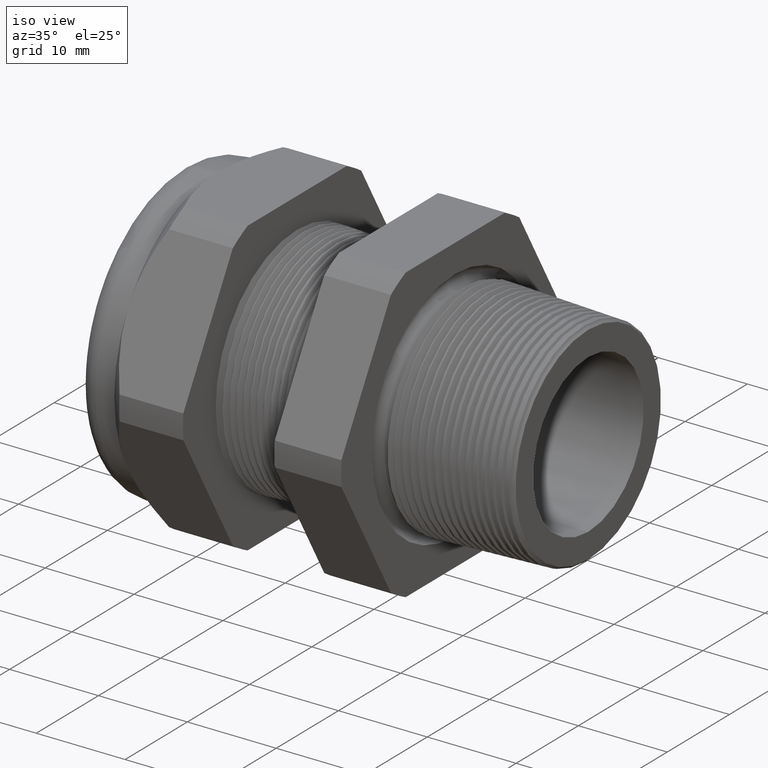
[diagram: clean part render]
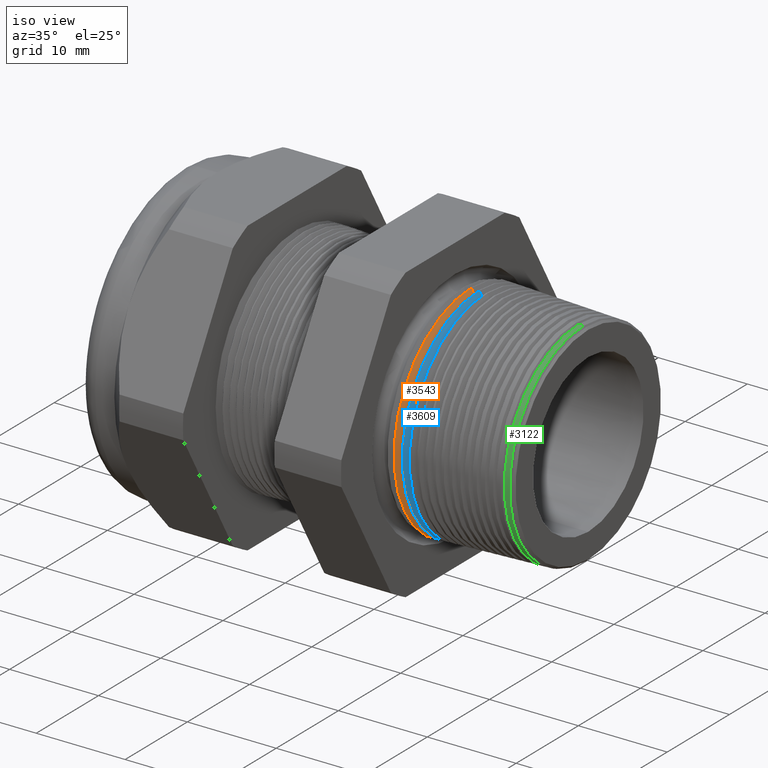
[diagram: same view with three faces highlighted in distinct colors, each labeled with its STEP entity id]
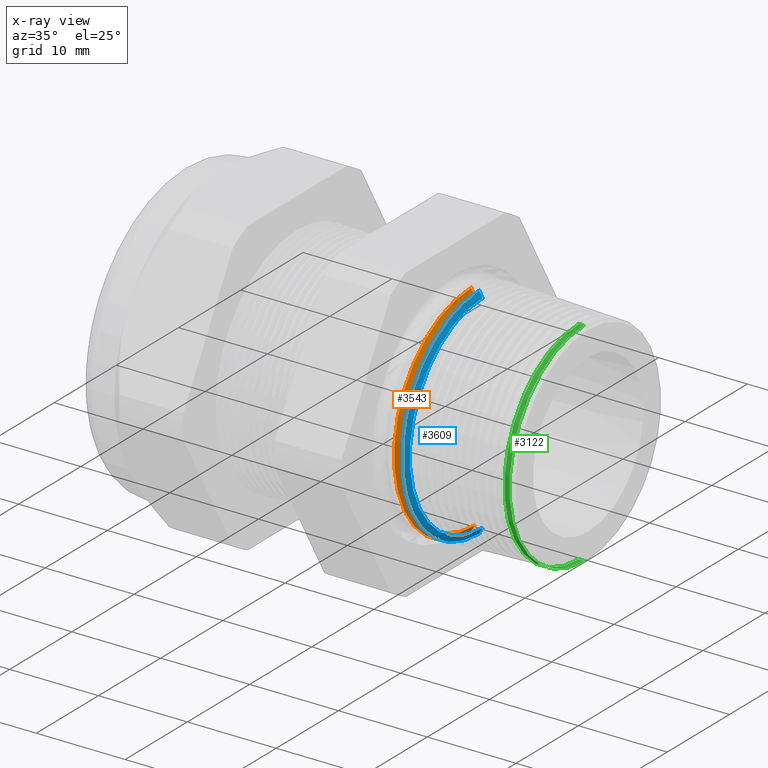
[diagram: x-ray of the same camera — body ghosted, the three highlighted faces saturated]
A machine part, iso view with three faces highlighted in distinct colors.
The next image is the same camera in x-ray (body ghosted, the three faces saturated) — at least one of them is partly hidden behind the body in this view.
Their STEP definitions:

[orange] entity #3543 — the highlighted conical surface has half-angle 62 deg.
#271 = DIRECTION ( 'NONE',  ( 0.0000000000000000000, 0.0000000000000000000, 1.000000000000000000 ) ) ;
#272 = DIRECTION ( 'NONE',  ( -1.000000000000000000, 0.0000000000000000000, 0.0000000000000000000 ) ) ;
#273 = AXIS2_PLACEMENT_3D ( 'NONE', #280, #272, #271 ) ;
#275 = CONICAL_SURFACE ( 'NONE', #273, 0.4905444626882251600, 1.082104136236473200 ) ;
#276 = FACE_OUTER_BOUND ( 'NONE', #3544, .T. ) ;
#280 = CARTESIAN_POINT ( 'NONE',  ( -0.2399999999999999600, 0.0000000000000000000, 0.0000000000000000000 ) ) ;
#332 = DIRECTION ( 'NONE',  ( 0.0000000000000000000, 0.0000000000000000000, -1.000000000000000000 ) ) ;
#333 = DIRECTION ( 'NONE',  ( 1.000000000000000000, 0.0000000000000000000, 0.0000000000000000000 ) ) ;
#334 = CARTESIAN_POINT ( 'NONE',  ( -0.2237370280109211300, 0.0000000000000000000, 0.0000000000000000000 ) ) ;
#335 = AXIS2_PLACEMENT_3D ( 'NONE', #334, #333, #332 ) ;
#340 = CIRCLE ( 'NONE', #335, 0.4599582608631793100 ) ;
#1553 = CARTESIAN_POINT ( 'NONE',  ( -0.2386756710796202100, 5.977459049063339100E-017, -0.4880537622388435600 ) ) ;
#1554 = DIRECTION ( 'NONE',  ( -0.4694715627859006300, 1.081298943409538900E-016, -0.8829475928589217700 ) ) ;
#1555 = VECTOR ( 'NONE', #1554, 39.37007874015748900 ) ;
#1556 = CARTESIAN_POINT ( 'NONE',  ( -0.2399999999999999600, 6.007437060705931600E-017, -0.4905444626882251600 ) ) ;
#1557 = LINE ( 'NONE', #1556, #1555 ) ;
#1565 = CARTESIAN_POINT ( 'NONE',  ( -0.2237370280109211300, 0.0000000000000000000, 0.4599582608631793100 ) ) ;
#1583 = CARTESIAN_POINT ( 'NONE',  ( -0.2237370280109211300, 5.804899448225494400E-017, -0.4599582608631793100 ) ) ;
#1617 = CARTESIAN_POINT ( 'NONE',  ( -0.2386756710796202100, 0.0000000000000000000, 0.4880537622388435600 ) ) ;
#1637 = DIRECTION ( 'NONE',  ( -0.4694715627859006300, 0.0000000000000000000, 0.8829475928589217700 ) ) ;
#1638 = VECTOR ( 'NONE', #1637, 39.37007874015748900 ) ;
#1639 = CARTESIAN_POINT ( 'NONE',  ( -0.2399999999999999600, 0.0000000000000000000, 0.4905444626882251600 ) ) ;
#1640 = LINE ( 'NONE', #1639, #1638 ) ;
#2866 = EDGE_CURVE ( 'NONE', #4328, #4294, #5202, .T. ) ;
#3543 = ADVANCED_FACE ( 'NONE', ( #276 ), #275, .T. ) ;
#3544 = EDGE_LOOP ( 'NONE', ( #3545, #3599, #3601, #3602 ) ) ;
#3545 = ORIENTED_EDGE ( 'NONE', *, *, #4293, .F. ) ;
#3599 = ORIENTED_EDGE ( 'NONE', *, *, #3600, .F. ) ;
#3600 = EDGE_CURVE ( 'NONE', #4320, #4306, #340, .T. ) ;
#3601 = ORIENTED_EDGE ( 'NONE', *, *, #4349, .T. ) ;
#3602 = ORIENTED_EDGE ( 'NONE', *, *, #2866, .T. ) ;
#4293 = EDGE_CURVE ( 'NONE', #4306, #4294, #1557, .T. ) ;
#4294 = VERTEX_POINT ( 'NONE', #1553 ) ;
#4306 = VERTEX_POINT ( 'NONE', #1583 ) ;
#4320 = VERTEX_POINT ( 'NONE', #1565 ) ;
#4328 = VERTEX_POINT ( 'NONE', #1617 ) ;
#4349 = EDGE_CURVE ( 'NONE', #4320, #4328, #1640, .T. ) ;
#5199 = DIRECTION ( 'NONE',  ( 0.0000000000000000000, 0.0000000000000000000, 1.000000000000000000 ) ) ;
#5200 = DIRECTION ( 'NONE',  ( 1.000000000000000000, 0.0000000000000000000, 0.0000000000000000000 ) ) ;
#5201 = AXIS2_PLACEMENT_3D ( 'NONE', #5207, #5200, #5199 ) ;
#5202 = CIRCLE ( 'NONE', #5201, 0.4880537622388435600 ) ;
#5207 = CARTESIAN_POINT ( 'NONE',  ( -0.2386756710796202100, 0.0000000000000000000, 0.0000000000000000000 ) ) ;

[blue] entity #3609 — the highlighted conical surface has half-angle 62 deg.
#322 = CONICAL_SURFACE ( 'NONE', #324, 0.4905444626882251600, 1.082104136236473200 ) ;
#324 = AXIS2_PLACEMENT_3D ( 'NONE', #384, #383, #382 ) ;
#329 = FACE_OUTER_BOUND ( 'NONE', #3587, .T. ) ;
#343 = DIRECTION ( 'NONE',  ( 0.0000000000000000000, 0.0000000000000000000, -1.000000000000000000 ) ) ;
#344 = DIRECTION ( 'NONE',  ( 1.000000000000000000, 0.0000000000000000000, 0.0000000000000000000 ) ) ;
#345 = AXIS2_PLACEMENT_3D ( 'NONE', #351, #344, #343 ) ;
#346 = CIRCLE ( 'NONE', #345, 0.4599582608631793100 ) ;
#351 = CARTESIAN_POINT ( 'NONE',  ( -0.1887370280109211300, 0.0000000000000000000, 0.0000000000000000000 ) ) ;
#382 = DIRECTION ( 'NONE',  ( 0.0000000000000000000, 0.0000000000000000000, 1.000000000000000000 ) ) ;
#383 = DIRECTION ( 'NONE',  ( -1.000000000000000000, 0.0000000000000000000, 0.0000000000000000000 ) ) ;
#384 = CARTESIAN_POINT ( 'NONE',  ( -0.2049999999999999600, 0.0000000000000000000, 0.0000000000000000000 ) ) ;
#1438 = CARTESIAN_POINT ( 'NONE',  ( -0.1887370280109211300, 5.797273877393069500E-017, -0.4599582608631793100 ) ) ;
#1449 = DIRECTION ( 'NONE',  ( -0.4694715627859006300, 0.0000000000000000000, 0.8829475928589217700 ) ) ;
#1450 = VECTOR ( 'NONE', #1449, 39.37007874015748900 ) ;
#1451 = CARTESIAN_POINT ( 'NONE',  ( -0.2049999999999999600, 0.0000000000000000000, 0.4905444626882251600 ) ) ;
#1452 = LINE ( 'NONE', #1451, #1450 ) ;
#1485 = CARTESIAN_POINT ( 'NONE',  ( -0.2030135066194303500, 0.0000000000000000000, 0.4868084120141527000 ) ) ;
#1486 = CARTESIAN_POINT ( 'NONE',  ( -0.2030135066194303500, 5.962509316662496400E-017, -0.4868084120141527000 ) ) ;
#1487 = DIRECTION ( 'NONE',  ( -0.4694715627859006300, 1.081298943409538900E-016, -0.8829475928589217700 ) ) ;
#1488 = VECTOR ( 'NONE', #1487, 39.37007874015748900 ) ;
#1489 = CARTESIAN_POINT ( 'NONE',  ( -0.2049999999999999600, 6.007437060705931600E-017, -0.4905444626882251600 ) ) ;
#1490 = LINE ( 'NONE', #1489, #1488 ) ;
#1581 = CARTESIAN_POINT ( 'NONE',  ( -0.1887370280109211300, 0.0000000000000000000, 0.4599582608631793100 ) ) ;
#2858 = EDGE_CURVE ( 'NONE', #4265, #4264, #5156, .T. ) ;
#3587 = EDGE_LOOP ( 'NONE', ( #3588, #3589, #3591, #3592 ) ) ;
#3588 = ORIENTED_EDGE ( 'NONE', *, *, #4263, .F. ) ;
#3589 = ORIENTED_EDGE ( 'NONE', *, *, #3590, .F. ) ;
#3590 = EDGE_CURVE ( 'NONE', #4308, #4257, #346, .T. ) ;
#3591 = ORIENTED_EDGE ( 'NONE', *, *, #4252, .T. ) ;
#3592 = ORIENTED_EDGE ( 'NONE', *, *, #2858, .T. ) ;
#3609 = ADVANCED_FACE ( 'NONE', ( #329 ), #322, .T. ) ;
#4252 = EDGE_CURVE ( 'NONE', #4308, #4265, #1452, .T. ) ;
#4257 = VERTEX_POINT ( 'NONE', #1438 ) ;
#4263 = EDGE_CURVE ( 'NONE', #4257, #4264, #1490, .T. ) ;
#4264 = VERTEX_POINT ( 'NONE', #1486 ) ;
#4265 = VERTEX_POINT ( 'NONE', #1485 ) ;
#4308 = VERTEX_POINT ( 'NONE', #1581 ) ;
#5153 = DIRECTION ( 'NONE',  ( 0.0000000000000000000, 0.0000000000000000000, 1.000000000000000000 ) ) ;
#5154 = DIRECTION ( 'NONE',  ( 1.000000000000000000, 0.0000000000000000000, 0.0000000000000000000 ) ) ;
#5155 = AXIS2_PLACEMENT_3D ( 'NONE', #5161, #5154, #5153 ) ;
#5156 = CIRCLE ( 'NONE', #5155, 0.4868084120141527000 ) ;
#5161 = CARTESIAN_POINT ( 'NONE',  ( -0.2030135066194303500, 0.0000000000000000000, 0.0000000000000000000 ) ) ;

[green] entity #3122 — the highlighted conical surface has half-angle 2 deg.
#875 = CARTESIAN_POINT ( 'NONE',  ( 0.2605946313630381200, 5.768162795451536000E-017, -0.4706188590931718000 ) ) ;
#934 = CARTESIAN_POINT ( 'NONE',  ( 0.2605946313630381200, 0.0000000000000000000, 0.4706188590931718000 ) ) ;
#1028 = CARTESIAN_POINT ( 'NONE',  ( 0.2384085732638686900, 5.772906796834748200E-017, -0.4713936133139833300 ) ) ;
#1029 = CARTESIAN_POINT ( 'NONE',  ( 0.2384085732638686900, 0.0000000000000000000, 0.4713936133139833300 ) ) ;
#1534 = LINE ( 'NONE', #2038, #2100 ) ;
#2038 = CARTESIAN_POINT ( 'NONE',  ( 0.2800000000000000300, 5.755119970073178500E-017, -0.4699412086880983000 ) ) ;
#2051 = DIRECTION ( 'NONE',  ( -0.9993908270190959800, 0.0000000000000000000, 0.03489949670249382900 ) ) ;
#2052 = VECTOR ( 'NONE', #2051, 39.37007874015748100 ) ;
#2053 = CARTESIAN_POINT ( 'NONE',  ( 0.2800000000000000300, 0.0000000000000000000, 0.4699412086880983000 ) ) ;
#2054 = LINE ( 'NONE', #2053, #2052 ) ;
#2099 = DIRECTION ( 'NONE',  ( -0.9993908270190959800, 4.273955692856267400E-018, -0.03489949670249382900 ) ) ;
#2100 = VECTOR ( 'NONE', #2099, 39.37007874015748100 ) ;
#3122 = ADVANCED_FACE ( 'NONE', ( #5734 ), #5733, .T. ) ;
#3123 = EDGE_LOOP ( 'NONE', ( #3124, #3125, #3127, #3128 ) ) ;
#3124 = ORIENTED_EDGE ( 'NONE', *, *, #6236, .F. ) ;
#3125 = ORIENTED_EDGE ( 'NONE', *, *, #3126, .F. ) ;
#3126 = EDGE_CURVE ( 'NONE', #3997, #3962, #5728, .T. ) ;
#3127 = ORIENTED_EDGE ( 'NONE', *, *, #6225, .T. ) ;
#3128 = ORIENTED_EDGE ( 'NONE', *, *, #3129, .F. ) ;
#3129 = EDGE_CURVE ( 'NONE', #4041, #4040, #5791, .T. ) ;
#3962 = VERTEX_POINT ( 'NONE', #875 ) ;
#3997 = VERTEX_POINT ( 'NONE', #934 ) ;
#4040 = VERTEX_POINT ( 'NONE', #1029 ) ;
#4041 = VERTEX_POINT ( 'NONE', #1028 ) ;
#5725 = DIRECTION ( 'NONE',  ( 0.0000000000000000000, 0.0000000000000000000, 1.000000000000000000 ) ) ;
#5726 = DIRECTION ( 'NONE',  ( 1.000000000000000000, 0.0000000000000000000, 0.0000000000000000000 ) ) ;
#5727 = AXIS2_PLACEMENT_3D ( 'NONE', #5732, #5726, #5725 ) ;
#5728 = CIRCLE ( 'NONE', #5727, 0.4706188590931718000 ) ;
#5729 = DIRECTION ( 'NONE',  ( 0.0000000000000000000, 0.0000000000000000000, 1.000000000000000000 ) ) ;
#5730 = DIRECTION ( 'NONE',  ( -1.000000000000000000, 0.0000000000000000000, 0.0000000000000000000 ) ) ;
#5731 = AXIS2_PLACEMENT_3D ( 'NONE', #5739, #5730, #5729 ) ;
#5732 = CARTESIAN_POINT ( 'NONE',  ( 0.2605946313630381200, 0.0000000000000000000, 0.0000000000000000000 ) ) ;
#5733 = CONICAL_SURFACE ( 'NONE', #5731, 0.4699412086880983000, 0.03490658503987944400 ) ;
#5734 = FACE_OUTER_BOUND ( 'NONE', #3123, .T. ) ;
#5739 = CARTESIAN_POINT ( 'NONE',  ( 0.2800000000000000300, 0.0000000000000000000, 0.0000000000000000000 ) ) ;
#5787 = DIRECTION ( 'NONE',  ( 0.0000000000000000000, 0.0000000000000000000, -1.000000000000000000 ) ) ;
#5788 = DIRECTION ( 'NONE',  ( -1.000000000000000000, 0.0000000000000000000, 0.0000000000000000000 ) ) ;
#5789 = CARTESIAN_POINT ( 'NONE',  ( 0.2384085732638686900, 0.0000000000000000000, 0.0000000000000000000 ) ) ;
#5790 = AXIS2_PLACEMENT_3D ( 'NONE', #5789, #5788, #5787 ) ;
#5791 = CIRCLE ( 'NONE', #5790, 0.4713936133139833300 ) ;
#6225 = EDGE_CURVE ( 'NONE', #3997, #4040, #2054, .T. ) ;
#6236 = EDGE_CURVE ( 'NONE', #3962, #4041, #1534, .T. ) ;